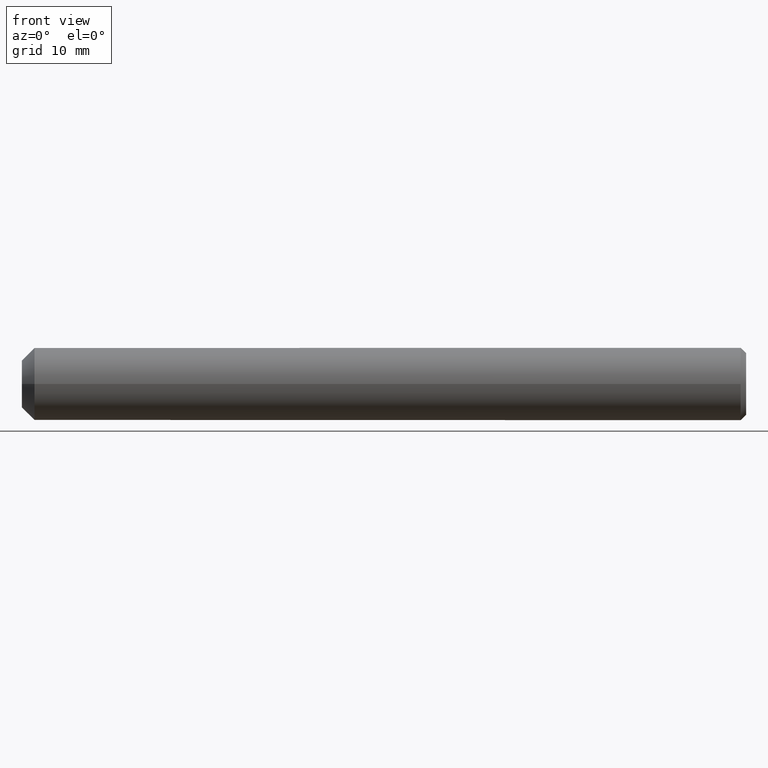
[diagram: clean part render]
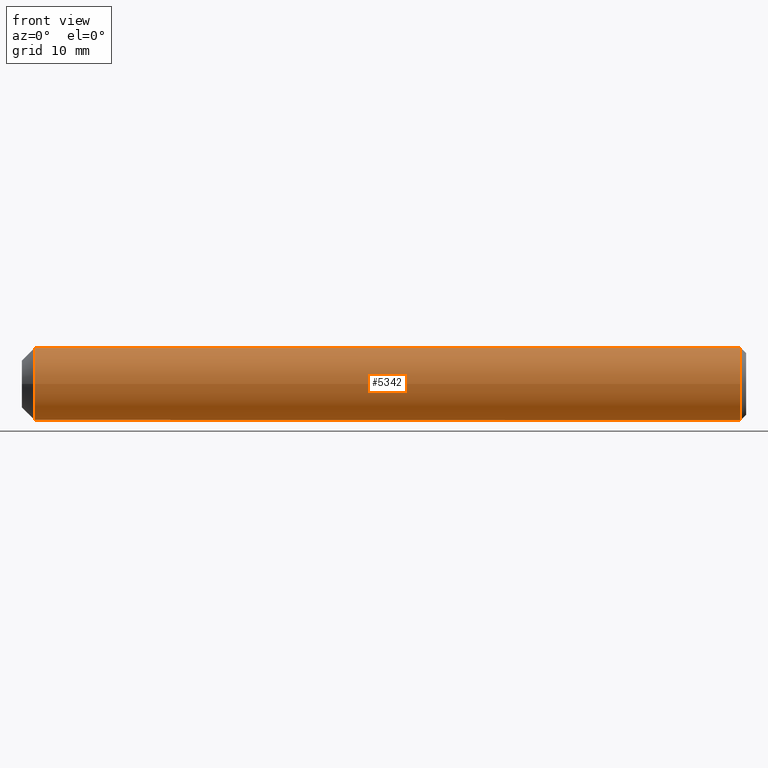
[diagram: same view with one face highlighted and labeled with its STEP entity id]
A machine part, front view. The second image highlights one B-rep face of the part: STEP entity #5342.
In plain terms, the highlighted cylindrical surface (bore or boss wall) has radius 4 mm, axis along (-1, -0, -0).
Its self-contained STEP definition (entity closure, byte-faithful):
#18 = DIRECTION ( 'NONE',  ( -1.000000000000000000, 3.242134472605243700E-017, -0.0000000000000000000 ) ) ;
#914 = DIRECTION ( 'NONE',  ( -1.000000000000000000, -0.0000000000000000000, -0.0000000000000000000 ) ) ;
#1156 = VERTEX_POINT ( 'NONE', #6472 ) ;
#1172 = ORIENTED_EDGE ( 'NONE', *, *, #3406, .T. ) ;
#1393 = AXIS2_PLACEMENT_3D ( 'NONE', #9521, #914, #12400 ) ;
#1627 = CARTESIAN_POINT ( 'NONE',  ( 1.399999999999984400, -4.538988261647290200E-017, 0.0000000000000000000 ) ) ;
#2759 = DIRECTION ( 'NONE',  ( -5.421010862427522200E-017, -1.000000000000000000, 0.0000000000000000000 ) ) ;
#3406 = EDGE_CURVE ( 'NONE', #1156, #1156, #15215, .T. ) ;
#3802 = EDGE_LOOP ( 'NONE', ( #6001 ) ) ;
#4436 = FACE_OUTER_BOUND ( 'NONE', #3802, .T. ) ;
#5089 = FACE_OUTER_BOUND ( 'NONE', #5471, .T. ) ;
#5342 = ADVANCED_FACE ( 'NONE', ( #5089, #4436 ), #9374, .T. ) ;
#5471 = EDGE_LOOP ( 'NONE', ( #1172 ) ) ;
#5953 = CIRCLE ( 'NONE', #7767, 4.000000000000000000 ) ;
#6001 = ORIENTED_EDGE ( 'NONE', *, *, #11768, .F. ) ;
#6472 = CARTESIAN_POINT ( 'NONE',  ( 79.39999999999999100, 0.0000000000000000000, -4.000000000000000000 ) ) ;
#7767 = AXIS2_PLACEMENT_3D ( 'NONE', #1627, #18, #2759 ) ;
#8375 = CARTESIAN_POINT ( 'NONE',  ( 79.39999999999999100, 0.0000000000000000000, 0.0000000000000000000 ) ) ;
#9374 = CYLINDRICAL_SURFACE ( 'NONE', #1393, 4.000000000000000000 ) ;
#9521 = CARTESIAN_POINT ( 'NONE',  ( 80.00000000000000000, 0.0000000000000000000, 0.0000000000000000000 ) ) ;
#11025 = AXIS2_PLACEMENT_3D ( 'NONE', #8375, #13821, #18345 ) ;
#11705 = VERTEX_POINT ( 'NONE', #12115 ) ;
#11768 = EDGE_CURVE ( 'NONE', #11705, #11705, #5953, .T. ) ;
#12115 = CARTESIAN_POINT ( 'NONE',  ( 1.399999999999984100, -4.000000000000000000, 0.0000000000000000000 ) ) ;
#12400 = DIRECTION ( 'NONE',  ( 0.0000000000000000000, 0.0000000000000000000, 1.000000000000000000 ) ) ;
#13821 = DIRECTION ( 'NONE',  ( -1.000000000000000000, 0.0000000000000000000, 0.0000000000000000000 ) ) ;
#15215 = CIRCLE ( 'NONE', #11025, 4.000000000000000000 ) ;
#18345 = DIRECTION ( 'NONE',  ( 0.0000000000000000000, 0.0000000000000000000, -1.000000000000000000 ) ) ;